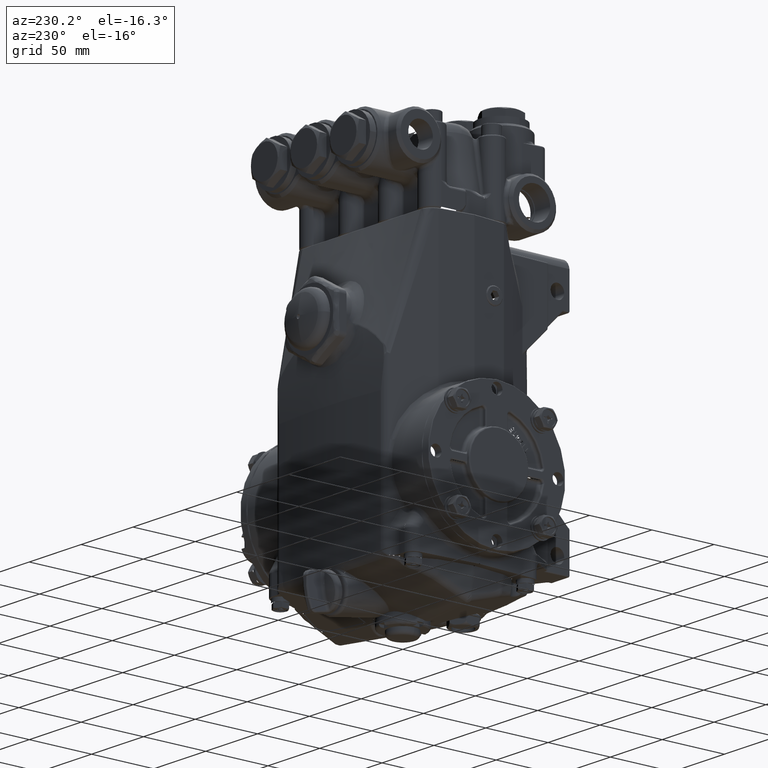
[diagram: clean part render]
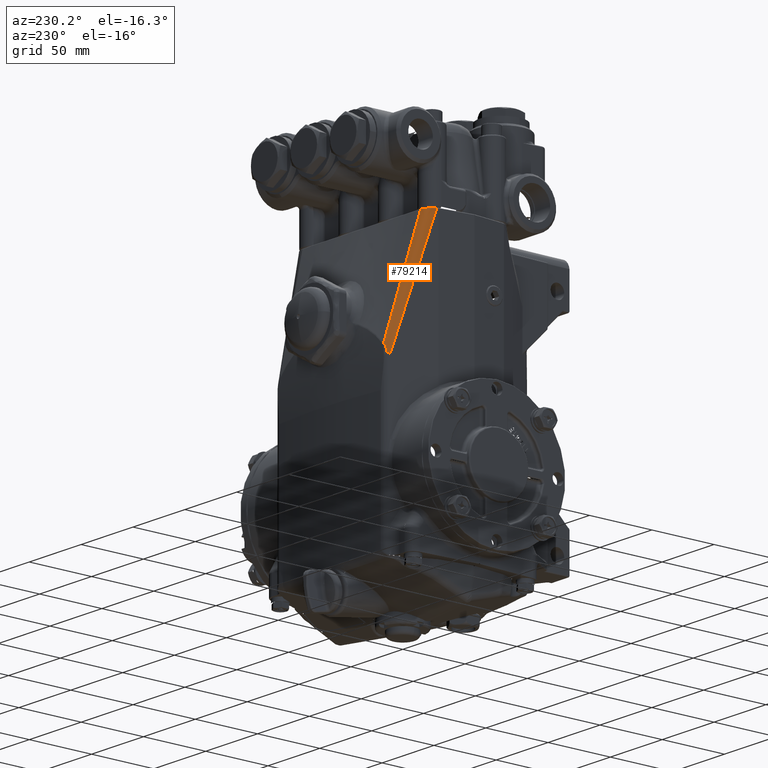
[diagram: same view with one face highlighted and labeled with its STEP entity id]
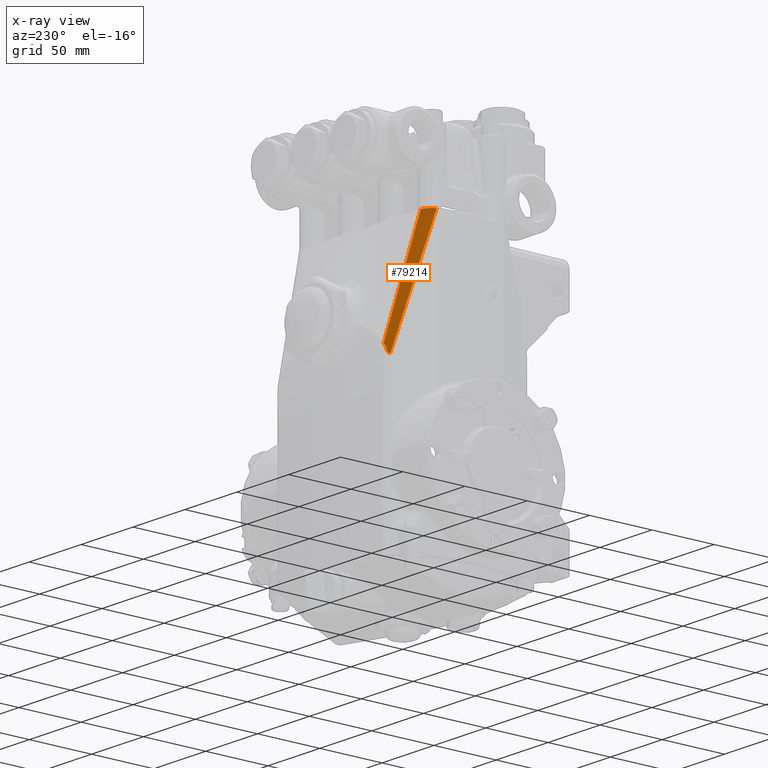
[diagram: x-ray of the same camera — body ghosted, the highlighted face saturated]
A machine part, auxiliary view. The second image highlights one B-rep face of the part: STEP entity #79214.
The next image is the same camera in x-ray: the body ghosted, the highlighted face saturated — about 0% of this face is hidden behind the body in this view.
In plain terms, the highlighted face is a freeform B-spline surface patch.
Its self-contained STEP definition (entity closure, byte-faithful):
#1383 = CARTESIAN_POINT ( 'NONE',  ( -2.171109568603361684, 2.032370397332657674, 3.701658990816812711 ) ) ;
#1747 = EDGE_CURVE ( 'NONE', #45382, #123036, #37415, .T. ) ;
#2639 = CARTESIAN_POINT ( 'NONE',  ( -2.141102833431372421, 1.640556580735810011, 5.285820039345583865 ) ) ;
#2997 = CARTESIAN_POINT ( 'NONE',  ( -2.219596835928836054, 1.371663885670308280, 6.270709733077245218 ) ) ;
#3050 = EDGE_CURVE ( 'NONE', #21131, #3402, #64155, .T. ) ;
#3402 = VERTEX_POINT ( 'NONE', #122441 ) ;
#4214 = CARTESIAN_POINT ( 'NONE',  ( -2.039592545178605221, 2.016255469052942395, 3.889656437366334707 ) ) ;
#4844 = CARTESIAN_POINT ( 'NONE',  ( -2.024869860137846977, 2.067350199555262336, 3.698439582320026009 ) ) ;
#4995 = CARTESIAN_POINT ( 'NONE',  ( -1.980521336883294126, 2.247603629403292835, 3.007863104263380549 ) ) ;
#5217 = CARTESIAN_POINT ( 'NONE',  ( -2.510794119809996783, 1.235584433543192473, 5.944399523494049653 ) ) ;
#5453 = CARTESIAN_POINT ( 'NONE',  ( -2.102087708257041943, 1.788501175651054487, 4.738252424846279176 ) ) ;
#6128 = ORIENTED_EDGE ( 'NONE', *, *, #97894, .T. ) ;
#6240 = CARTESIAN_POINT ( 'NONE',  ( -1.973946976392833230, 2.248599357204132065, 3.013515580454662057 ) ) ;
#7082 = CARTESIAN_POINT ( 'NONE',  ( -2.116276716150627291, 2.160989868001935932, 2.740471938754866610 ) ) ;
#7697 = CARTESIAN_POINT ( 'NONE',  ( -2.135341153782769119, 2.116271095075712427, 2.900905791160292679 ) ) ;
#8324 = CARTESIAN_POINT ( 'NONE',  ( -2.370840981384998880, 1.563867529971241233, 4.815523516165016282 ) ) ;
#8933 = CARTESIAN_POINT ( 'NONE',  ( -2.191904193969489878, 1.983593184563320344, 3.371821664693418708 ) ) ;
#9042 = CARTESIAN_POINT ( 'NONE',  ( -2.449883091026841431, 1.236532062125927478, 6.518773817722738784 ) ) ;
#9551 = CARTESIAN_POINT ( 'NONE',  ( -2.085203970099893667, 2.233876102617321724, 2.923210346434277795 ) ) ;
#10066 = CARTESIAN_POINT ( 'NONE',  ( -2.086370469878879863, 2.212679244017106583, 2.765750601190421598 ) ) ;
#10172 = CARTESIAN_POINT ( 'NONE',  ( -2.087632747411837020, 2.228179006147618768, 2.498972627154562698 ) ) ;
#10795 = CARTESIAN_POINT ( 'NONE',  ( -2.299921550685326554, 1.730220714815038141, 4.869719321444399007 ) ) ;
#12337 = CARTESIAN_POINT ( 'NONE',  ( -2.473764344979107133, 1.322443858621624724, 5.641326221469083357 ) ) ;
#13035 = CARTESIAN_POINT ( 'NONE',  ( -2.242889468066143088, 1.303183471566980778, 6.520931740362723161 ) ) ;
#13644 = CARTESIAN_POINT ( 'NONE',  ( -2.051087863689119661, 1.975864094663217996, 4.040739276079862385 ) ) ;
#13809 = CARTESIAN_POINT ( 'NONE',  ( -2.078564588323855045, 2.221814779649408766, 2.770839816914288711 ) ) ;
#14903 = CARTESIAN_POINT ( 'NONE',  ( -2.095277330354888612, 1.814225585600651502, 4.642765349930773056 ) ) ;
#16626 = ORIENTED_EDGE ( 'NONE', *, *, #3050, .F. ) ;
#16644 = CARTESIAN_POINT ( 'NONE',  ( -2.309823888779523493, 1.298527965123032146, 6.520761428549846528 ) ) ;
#17130 = CARTESIAN_POINT ( 'NONE',  ( -2.192961000559563445, 1.981114270952527345, 3.380523504820887926 ) ) ;
#17247 = CARTESIAN_POINT ( 'NONE',  ( -2.518966107140703237, 1.173763510896865148, 6.517566061681055345 ) ) ;
#17918 = VERTEX_POINT ( 'NONE', #106268 ) ;
#18374 = CARTESIAN_POINT ( 'NONE',  ( -2.207253145336844469, 1.947589695549040378, 3.498047023021521262 ) ) ;
#18391 = CARTESIAN_POINT ( 'NONE',  ( -2.492970227129208016, 1.277393304293375831, 6.621363530560992139 ) ) ;
#18493 = CARTESIAN_POINT ( 'NONE',  ( -2.445216281494452470, 1.239785793748971576, 6.518841455900954429 ) ) ;
#19015 = CARTESIAN_POINT ( 'NONE',  ( -2.560585973950515903, 1.118789453179791948, 6.359217476521575207 ) ) ;
#20246 = CARTESIAN_POINT ( 'NONE',  ( -2.419380578230820422, 1.450009924981134679, 5.200656286739674172 ) ) ;
#20874 = CARTESIAN_POINT ( 'NONE',  ( -2.027881314845334959, 2.059957115943923167, 3.726161280968987910 ) ) ;
#21131 = VERTEX_POINT ( 'NONE', #36153 ) ;
#23085 = CARTESIAN_POINT ( 'NONE',  ( -2.103217578824546408, 1.784213553588428258, 4.754159994647659815 ) ) ;
#23860 = CARTESIAN_POINT ( 'NONE',  ( -2.074511941278426530, 2.223974776708035783, 2.793438250434746806 ) ) ;
#24725 = CARTESIAN_POINT ( 'NONE',  ( -2.447601858726410118, 1.383812271605760813, 5.429797053208527124 ) ) ;
#24957 = CARTESIAN_POINT ( 'NONE',  ( -1.969283401333570938, 2.249277433038161078, 3.017030524756072474 ) ) ;
#25724 = CARTESIAN_POINT ( 'NONE',  ( -1.971604190926488309, 2.248943877874152619, 3.015350224216022390 ) ) ;
#26570 = CARTESIAN_POINT ( 'NONE',  ( -2.388754342707700928, 1.521848795781840291, 4.957948705581671334 ) ) ;
#27164 = CARTESIAN_POINT ( 'NONE',  ( -2.196249590001861041, 1.973400343725545181, 3.407587999926295907 ) ) ;
#27792 = CARTESIAN_POINT ( 'NONE',  ( -2.323235984449598668, 1.675532877210126781, 4.434848354001196924 ) ) ;
#27907 = CARTESIAN_POINT ( 'NONE',  ( -2.452949543125477749, 1.234340743231118642, 6.518732834307325419 ) ) ;
#28407 = CARTESIAN_POINT ( 'NONE',  ( -2.236764012673437829, 1.878367104211970506, 3.739431548797619520 ) ) ;
#28525 = CARTESIAN_POINT ( 'NONE',  ( -2.445206671470471882, 1.239792357576791515, 6.518841608572046198 ) ) ;
#29035 = CARTESIAN_POINT ( 'NONE',  ( -2.273209536691880306, 1.215653160743623395, 6.840860013023599251 ) ) ;
#30274 = CARTESIAN_POINT ( 'NONE',  ( -2.186378929579909869, 1.481371582545127685, 5.869664288253999551 ) ) ;
#31171 = CARTESIAN_POINT ( 'NONE',  ( -2.509661153480672091, 1.238241992344124132, 5.935059730904028719 ) ) ;
#31874 = CARTESIAN_POINT ( 'NONE',  ( -2.103701330979389716, 1.782375980943467386, 4.760976884162536393 ) ) ;
#32487 = CARTESIAN_POINT ( 'NONE',  ( -2.015857065217431909, 2.098060744278819278, 3.583443737743760238 ) ) ;
#32551 =( BOUNDED_SURFACE ( )  B_SPLINE_SURFACE ( 2, 3, ( 
 ( #96247, #84983, #19015, #87443, #66156, #20246, #8324, #75547, #76180, #39030, #123214, #10172, #37209, #113794 ),
 ( #104434, #18391, #58565, #56707, #96870, #115041, #10795, #49117, #1383, #114422, #9551, #66777, #47872, #86219 ),
 ( #29035, #67379, #105650, #68615, #30274, #2639, #69841, #90530, #20874, #80488, #78032, #39649, #59792, #70467 ) ),
 .UNSPECIFIED., .F., .F., .F. ) 
 B_SPLINE_SURFACE_WITH_KNOTS ( ( 3, 3 ),
 ( 4, 2, 2, 2, 2, 2, 4 ),
 ( 0.000000000000000000, 1.000000000000000000 ),
 ( -0.05579888569863813291, -0.04039671253618186408, -0.02499453937372558832, 0.005809806951186959750, 0.03661415327609950782, 0.05201632643855577665, 0.06741849960101205241 ),
 .UNSPECIFIED. ) 
 GEOMETRIC_REPRESENTATION_ITEM ( )  RATIONAL_B_SPLINE_SURFACE ( (
 ( 1.000000000000000000, 1.000000000000000000, 1.000000000000000000, 1.000000000000000000, 1.000000000000000000, 1.000000000000000000, 1.000000000000000000, 1.000000000000000000, 1.000000000000000000, 1.000000000000000000, 1.000000000000000000, 1.000000000000000000, 1.000000000000000000, 1.000000000000000000),
 ( 0.8249655899556018745, 0.8281912456652233967, 0.8315314859655612567, 0.8384645648586018796, 0.8420556766761636558, 0.8532132272860135647, 0.8611688039213737378, 0.8781266334368532656, 0.8871406962535873797, 0.9012423333731803821, 0.9060298368779703404, 0.9157270827393148016, 0.9206428270897365485, 0.9255808091159235529),
 ( 1.000000000000000000, 1.000000000000000000, 1.000000000000000000, 1.000000000000000000, 1.000000000000000000, 1.000000000000000000, 1.000000000000000000, 1.000000000000000000, 1.000000000000000000, 1.000000000000000000, 1.000000000000000000, 1.000000000000000000, 1.000000000000000000, 1.000000000000000000) ) ) 
 REPRESENTATION_ITEM ( '' )  SURFACE ( )  );
#33484 = CARTESIAN_POINT ( 'NONE',  ( -2.454128586136022694, 1.368502759381297507, 5.482476687669967319 ) ) ;
#33990 = B_SPLINE_CURVE_WITH_KNOTS ( 'NONE', 3,
 ( #79152, #10066, #116180, #41404, #48373, #117404, #108024, #60313 ),
 .UNSPECIFIED., .F., .F.,
 ( 4, 2, 2, 4 ),
 ( 0.006197228679374548743, 0.007185694159532395389, 0.007679926899611316110, 0.008174159639690236831 ),
 .UNSPECIFIED. ) ;
#35116 = CARTESIAN_POINT ( 'NONE',  ( -1.990657562505185663, 2.245983919444319188, 2.997701605078443521 ) ) ;
#35158 = ORIENTED_EDGE ( 'NONE', *, *, #71305, .T. ) ;
#35342 = CARTESIAN_POINT ( 'NONE',  ( -2.388247857486286208, 1.523036840141918979, 4.953903101054637936 ) ) ;
#35975 = CARTESIAN_POINT ( 'NONE',  ( -2.128867290965309245, 2.131456604707603564, 2.846450088255815469 ) ) ;
#36153 = CARTESIAN_POINT ( 'NONE',  ( -2.578741269179713580, 1.076203223235405515, 6.515748031496061188 ) ) ;
#36588 = CARTESIAN_POINT ( 'NONE',  ( -2.335228189731081372, 1.647403188036234090, 4.530557156123640183 ) ) ;
#36704 = CARTESIAN_POINT ( 'NONE',  ( -2.568667506091713459, 1.099827564856416862, 6.516020532537902810 ) ) ;
#37209 = CARTESIAN_POINT ( 'NONE',  ( -2.064620467235923407, 2.282158092840731012, 2.305505038962808229 ) ) ;
#37300 = CARTESIAN_POINT ( 'NONE',  ( -2.578741269179713580, 1.076203223235405515, 6.515748031496061188 ) ) ;
#37415 = B_SPLINE_CURVE_WITH_KNOTS ( 'NONE', 3,
 ( #24957, #41893, #89061, #90913, #32487, #4844, #62020, #71434, #52581, #100959, #43126, #4214, #13644, #79612, #117871, #14903, #81474, #5453, #23085, #31874, #53208, #42512, #80247, #119704, #63270, #2997, #13035 ),
 .UNSPECIFIED., .F., .F.,
 ( 4, 2, 2, 1, 1, 1, 2, 2, 1, 1, 1, 1, 1, 1, 2, 2, 2, 4 ),
 ( 0.005641731690138021039, 0.1293381763867609835, 0.1911863987350724825, 0.2221105099092279822, 0.2375725654963057876, 0.2453035932898448845, 0.2491691071866144469, 0.2530346210833839815, 0.3767310657800118645, 0.4385792881283260836, 0.4695033993024831931, 0.4849654548895614981, 0.4926964826831005118, 0.4965619965798699353, 0.4984947535282545084, 0.5004275104766390259, 0.7478203998698899069, 0.9952132892631408989 ),
 .UNSPECIFIED. ) ;
#37793 = CARTESIAN_POINT ( 'NONE',  ( -2.190313670553976078, 1.987324018738688469, 3.358720221647115700 ) ) ;
#39030 = CARTESIAN_POINT ( 'NONE',  ( -2.156531210261403597, 2.066566333663618416, 3.079474569265922224 ) ) ;
#39649 = CARTESIAN_POINT ( 'NONE',  ( -1.929606984645301226, 2.371916305126036573, 2.557822401772311682 ) ) ;
#41404 = CARTESIAN_POINT ( 'NONE',  ( -2.102880983442067198, 2.187768918881022540, 2.753086199699649406 ) ) ;
#41893 = CARTESIAN_POINT ( 'NONE',  ( -1.980576549137500475, 2.213915170793006038, 3.149390972694495971 ) ) ;
#42512 = CARTESIAN_POINT ( 'NONE',  ( -2.104176596812008082, 1.780569754446585717, 4.767677203724272061 ) ) ;
#42665 = CARTESIAN_POINT ( 'NONE',  ( -2.001753787168236709, 2.244087834222828981, 2.984545616857926298 ) ) ;
#43126 = CARTESIAN_POINT ( 'NONE',  ( -2.039255149049658655, 2.017440514121979334, 3.885223523361690301 ) ) ;
#43496 = CARTESIAN_POINT ( 'NONE',  ( -2.453904207224300471, 1.369029077009773276, 5.480664730401618279 ) ) ;
#43727 = ORIENTED_EDGE ( 'NONE', *, *, #107725, .T. ) ;
#44775 = CARTESIAN_POINT ( 'NONE',  ( -2.369657215020743557, 1.566644248606327672, 4.805421451750245154 ) ) ;
#44890 = CARTESIAN_POINT ( 'NONE',  ( -2.455098737719988211, 1.232773253164978655, 6.518705568978721665 ) ) ;
#45162 = CARTESIAN_POINT ( 'NONE',  ( -1.969283401333570938, 2.249277433038161078, 3.017030524756072474 ) ) ;
#45382 = VERTEX_POINT ( 'NONE', #110482 ) ;
#47231 = CARTESIAN_POINT ( 'NONE',  ( -2.388390843231512406, 1.522701443567635593, 4.955045197318138861 ) ) ;
#47345 = CARTESIAN_POINT ( 'NONE',  ( -2.378857210472768990, 1.277797303543370289, 6.519968401408404723 ) ) ;
#47872 = CARTESIAN_POINT ( 'NONE',  ( -2.020750001317166422, 2.385063483496169923, 2.339468058897046454 ) ) ;
#48373 = CARTESIAN_POINT ( 'NONE',  ( -2.105833752788412117, 2.182577919191674543, 2.750555192226245893 ) ) ;
#49117 = CARTESIAN_POINT ( 'NONE',  ( -2.214051862333661802, 1.931642187036901603, 4.091001638619363945 ) ) ;
#50662 = CARTESIAN_POINT ( 'NONE',  ( -2.459502388699162267, 1.355897621941197562, 5.525892219571484354 ) ) ;
#52581 = CARTESIAN_POINT ( 'NONE',  ( -2.037354366251948434, 2.024106466280659156, 3.860286317184686844 ) ) ;
#53076 = ORIENTED_EDGE ( 'NONE', *, *, #1747, .F. ) ;
#53208 = CARTESIAN_POINT ( 'NONE',  ( -2.104023726110235692, 1.781150927990455823, 4.765521334715924873 ) ) ;
#54222 = CARTESIAN_POINT ( 'NONE',  ( -2.128134919880238396, 2.133174501499679909, 2.840288846492204033 ) ) ;
#54949 = CARTESIAN_POINT ( 'NONE',  ( -2.448389174663573975, 1.237587732515563532, 6.518794331101427808 ) ) ;
#55442 = CARTESIAN_POINT ( 'NONE',  ( -2.324004755099399855, 1.673729599254377254, 4.440983501421465363 ) ) ;
#56688 = CARTESIAN_POINT ( 'NONE',  ( -2.129160240502529167, 2.130769443403055519, 2.848914584109101256 ) ) ;
#56707 = CARTESIAN_POINT ( 'NONE',  ( -2.428652043501072111, 1.428262178878300093, 6.037647731654220529 ) ) ;
#58565 = CARTESIAN_POINT ( 'NONE',  ( -2.471535058323093281, 1.327673016952173324, 6.426822189469408642 ) ) ;
#59792 = CARTESIAN_POINT ( 'NONE',  ( -1.912934457154228829, 2.423712075035871383, 2.363097743479620760 ) ) ;
#60313 = CARTESIAN_POINT ( 'NONE',  ( -2.116276716150627291, 2.160989868001935932, 2.740471938754866610 ) ) ;
#62020 = CARTESIAN_POINT ( 'NONE',  ( -2.029393201424144255, 2.051820080033732729, 3.756581077384122391 ) ) ;
#63034 = CARTESIAN_POINT ( 'NONE',  ( -2.504224283270166218, 1.250995065320325672, 5.890277865750602082 ) ) ;
#63270 = CARTESIAN_POINT ( 'NONE',  ( -2.196801966743004542, 1.445655353129325693, 6.000532626565719951 ) ) ;
#64155 = B_SPLINE_CURVE_WITH_KNOTS ( 'NONE', 3,
 ( #78316, #111339, #79542, #78934, #87731, #5217, #31171, #63034, #98399, #12337, #50662, #88984, #33484, #71812, #110103, #43496, #81863, #72450, #110736, #24725, #101338, #75530, #95001, #66136, #121957, #26570, #47231, #35342, #122578, #103776, #44775, #64900, #36588, #103187, #55442, #27792, #84349, #84966, #83121, #76162, #113186, #74919, #28407, #18374, #27164, #66759, #17130, #8933, #37793, #93760, #105030, #121346, #7697, #114404, #123196, #56688, #35975, #54222, #65503, #74304, #92544, #7082 ),
 .UNSPECIFIED., .F., .F.,
 ( 4, 1, 1, 2, 2, 1, 1, 1, 1, 2, 2, 1, 1, 1, 1, 1, 1, 1, 1, 1, 2, 2, 1, 1, 1, 1, 1, 1, 2, 2, 1, 1, 1, 1, 1, 2, 2, 1, 1, 1, 1, 1, 2, 2, 1, 1, 1, 4 ),
 ( 0.004384135288062663074, 0.1164778576989700248, 0.1304895730003339527, 0.1374954306510154933, 0.1445012883016970617, 0.1725247189044225027, 0.2285715801098741062, 0.2425832954112367712, 0.2495891530619177845, 0.2498080861135011654, 0.2500270191650844631, 0.2504648852682502813, 0.2513406174745818067, 0.2530920818872448574, 0.2565950107125701263, 0.2846184413151690573, 0.3406653025203668639, 0.3686887331229657949, 0.3721916619482903976, 0.3739431263609523381, 0.3748188585672830309, 0.3756945907736137236, 0.3827004484242614857, 0.3967121637255564548, 0.4527590249307363313, 0.4807824555333265470, 0.4947941708346216827, 0.4982970996599455082, 0.4991728318662764230, 0.5000485640726073377, 0.5018000284852692783, 0.5088058861359165963, 0.5648527473410953625, 0.6769464697514522289, 0.7329933309566308841, 0.7470050462579255202, 0.7505079750832490681, 0.7540109039085726161, 0.7610167615592194901, 0.7890401921618066527, 0.8450870533669809781, 0.8731104839695683628, 0.8748619483822301923, 0.8757376805885611626, 0.8766134127948920218, 0.8801163416202162360, 0.8871221992708644422, 0.9011339145721609656 ),
 .UNSPECIFIED. ) ;
#64385 = CARTESIAN_POINT ( 'NONE',  ( -2.413335886198790359, 1.261641137614142094, 6.519338661464769480 ) ) ;
#64900 = CARTESIAN_POINT ( 'NONE',  ( -2.352445062671071341, 1.607018181860922379, 4.667987381715759554 ) ) ;
#65013 = CARTESIAN_POINT ( 'NONE',  ( -2.461842245117182415, 1.227730308130063896, 6.518620642111073060 ) ) ;
#65503 = CARTESIAN_POINT ( 'NONE',  ( -2.126230790912788660, 2.137640949058251305, 2.824269590211677006 ) ) ;
#66136 = CARTESIAN_POINT ( 'NONE',  ( -2.390565578740811326, 1.517600243873659105, 4.972417417491544533 ) ) ;
#66156 = CARTESIAN_POINT ( 'NONE',  ( -2.490782990709670131, 1.282523826957326474, 5.779363762767575352 ) ) ;
#66248 = CARTESIAN_POINT ( 'NONE',  ( -2.445321431780115518, 1.239713587032230224, 6.518839829878381842 ) ) ;
#66759 = CARTESIAN_POINT ( 'NONE',  ( -2.193516040080917051, 1.979812334498938231, 3.385092303108808487 ) ) ;
#66777 = CARTESIAN_POINT ( 'NONE',  ( -2.042237225648480869, 2.334661666142283210, 2.534052278334617547 ) ) ;
#66871 = CARTESIAN_POINT ( 'NONE',  ( -2.494202314255044239, 1.200213502487107675, 6.518138096981285656 ) ) ;
#67379 = CARTESIAN_POINT ( 'NONE',  ( -2.254681818407403338, 1.268730751780510202, 6.646774213595586289 ) ) ;
#67598 = B_SPLINE_CURVE_WITH_KNOTS ( 'NONE', 3,
 ( #37300, #36704, #114514, #113294, #17247, #66871, #75639, #113891, #65013, #44890, #27907, #9042, #54949, #83236, #103298, #95110, #66248, #28525, #18493, #64385, #47345, #16644, #85682, #83838 ),
 .UNSPECIFIED., .F., .F.,
 ( 4, 2, 2, 2, 2, 2, 1, 1, 1, 1, 2, 2, 2, 4 ),
 ( 0.000000000000000000, 0.1250000000001746381, 0.2500000000003492762, 0.3750000000005239142, 0.4375000000006127321, 0.4687500000006562528, 0.4843750000006780687, 0.4921875000006889489, 0.4960937500006944445, 0.4980468750006966649, 0.4990234375006961098, 0.5000000000006955547, 0.7500000000003478329, 1.000000000000000000 ),
 .UNSPECIFIED. ) ;
#68615 = CARTESIAN_POINT ( 'NONE',  ( -2.202150233065117924, 1.428197325380847538, 6.064137633037693931 ) ) ;
#69841 = CARTESIAN_POINT ( 'NONE',  ( -2.113561063574255883, 1.746169220545683132, 4.896017564383725151 ) ) ;
#70467 = CARTESIAN_POINT ( 'NONE',  ( -1.896433767760507871, 2.475263124701502004, 2.168272852402046258 ) ) ;
#71305 = EDGE_CURVE ( 'NONE', #45382, #17918, #118679, .T. ) ;
#71434 = CARTESIAN_POINT ( 'NONE',  ( -2.034696585288667148, 2.033395393086714797, 3.825531984624838344 ) ) ;
#71812 = CARTESIAN_POINT ( 'NONE',  ( -2.454045509642763356, 1.368697628955176437, 5.481805796769130268 ) ) ;
#72228 = CARTESIAN_POINT ( 'NONE',  ( -2.035675016195813480, 2.236992360180967143, 2.924478765675068370 ) ) ;
#72450 = CARTESIAN_POINT ( 'NONE',  ( -2.453281713218242732, 1.370489239047693930, 5.475638330006604271 ) ) ;
#72846 = CARTESIAN_POINT ( 'NONE',  ( -1.978378808574838832, 2.247933082793946991, 3.009791413277802974 ) ) ;
#74085 = CARTESIAN_POINT ( 'NONE',  ( -2.069731911945700720, 2.226127944432313210, 2.815925666837383545 ) ) ;
#74304 = CARTESIAN_POINT ( 'NONE',  ( -2.122129775396042639, 2.147260555217052502, 2.789766433521803091 ) ) ;
#74919 = CARTESIAN_POINT ( 'NONE',  ( -2.275748337170824254, 1.786922961535482024, 4.054807651597041485 ) ) ;
#75530 = CARTESIAN_POINT ( 'NONE',  ( -2.414641187365241137, 1.461126945478474326, 5.164915279586455910 ) ) ;
#75547 = CARTESIAN_POINT ( 'NONE',  ( -2.274451880622001987, 1.789964013526333275, 4.044763416982778637 ) ) ;
#75639 = CARTESIAN_POINT ( 'NONE',  ( -2.482404142612225861, 1.210929223838076441, 6.518339644756721007 ) ) ;
#76162 = CARTESIAN_POINT ( 'NONE',  ( -2.320612957147009769, 1.681685619010703236, 4.413914260665834810 ) ) ;
#76180 = CARTESIAN_POINT ( 'NONE',  ( -2.226615536731508804, 1.902172023085083374, 3.659126657212345091 ) ) ;
#76798 = FACE_OUTER_BOUND ( 'NONE', #82220, .T. ) ;
#78032 = CARTESIAN_POINT ( 'NONE',  ( -1.963331270966063746, 2.267981324724265946, 2.947115148274536356 ) ) ;
#78316 = CARTESIAN_POINT ( 'NONE',  ( -2.578741269179713580, 1.076203223235405515, 6.515748031496061188 ) ) ;
#78934 = CARTESIAN_POINT ( 'NONE',  ( -2.516435499551322508, 1.222351649838227194, 5.990987664820365488 ) ) ;
#79152 = CARTESIAN_POINT ( 'NONE',  ( -2.078564588323855045, 2.221814779649408766, 2.770839816914288711 ) ) ;
#79214 = ADVANCED_FACE ( 'NONE', ( #76798 ), #32551, .T. ) ;
#79542 = CARTESIAN_POINT ( 'NONE',  ( -2.538027839267278374, 1.171703266951987343, 6.169933545763511162 ) ) ;
#79612 = CARTESIAN_POINT ( 'NONE',  ( -2.067507495042413268, 1.917100978669542988, 4.260115974954152840 ) ) ;
#80247 = CARTESIAN_POINT ( 'NONE',  ( -2.128129798516092741, 1.689511524556636335, 5.105438811511312736 ) ) ;
#80488 = CARTESIAN_POINT ( 'NONE',  ( -1.980158244783918331, 2.215925803143892203, 3.141747226529187920 ) ) ;
#81013 = CARTESIAN_POINT ( 'NONE',  ( -1.986756367771373322, 2.246624480287164882, 3.001904483647719335 ) ) ;
#81474 = CARTESIAN_POINT ( 'NONE',  ( -2.099823510332839760, 1.797076230404204722, 4.706431320396312401 ) ) ;
#81863 = CARTESIAN_POINT ( 'NONE',  ( -2.453717777139348577, 1.369466379425738012, 5.479159291132056353 ) ) ;
#82220 = EDGE_LOOP ( 'NONE', ( #16626, #6128, #53076, #35158, #43727 ) ) ;
#83121 = CARTESIAN_POINT ( 'NONE',  ( -2.322284246763545390, 1.677765334431744915, 4.427253081994904527 ) ) ;
#83236 = CARTESIAN_POINT ( 'NONE',  ( -2.446716860549502659, 1.238751505777597073, 6.518818660780111962 ) ) ;
#83838 = CARTESIAN_POINT ( 'NONE',  ( -2.242889468066143088, 1.303183471566980778, 6.520931740362723161 ) ) ;
#84349 = CARTESIAN_POINT ( 'NONE',  ( -2.322928475311592411, 1.676254190452120874, 4.432394295748198765 ) ) ;
#84966 = CARTESIAN_POINT ( 'NONE',  ( -2.322785958753120550, 1.676588486471730866, 4.431256960749057505 ) ) ;
#84983 = CARTESIAN_POINT ( 'NONE',  ( -2.583105798428203315, 1.065965502293462208, 6.553038627379630832 ) ) ;
#85682 = CARTESIAN_POINT ( 'NONE',  ( -2.275330066294140696, 1.303153593715473013, 6.520931048461626744 ) ) ;
#86219 = CARTESIAN_POINT ( 'NONE',  ( -1.999260438597442180, 2.435470786114593000, 2.144875713876672751 ) ) ;
#87443 = CARTESIAN_POINT ( 'NONE',  ( -2.514342318431109558, 1.227261550303916593, 5.972439309888373238 ) ) ;
#87731 = CARTESIAN_POINT ( 'NONE',  ( -2.513047790653295088, 1.230298078045243937, 5.962999282614607210 ) ) ;
#88984 = CARTESIAN_POINT ( 'NONE',  ( -2.455499089015298786, 1.365288019548124510, 5.493544481670835644 ) ) ;
#89061 = CARTESIAN_POINT ( 'NONE',  ( -1.992170046785848747, 2.176693751127848575, 3.288863769030317741 ) ) ;
#90437 = CARTESIAN_POINT ( 'NONE',  ( -2.026352038655822252, 2.239235650669866295, 2.945270539709730517 ) ) ;
#90530 = CARTESIAN_POINT ( 'NONE',  ( -2.056971949321643844, 1.955863575897020867, 4.116183297647427075 ) ) ;
#90913 = CARTESIAN_POINT ( 'NONE',  ( -2.009893760231598936, 2.118068184554910971, 3.508496124013047446 ) ) ;
#91675 = CARTESIAN_POINT ( 'NONE',  ( -2.058319616543888397, 2.230433463084998458, 2.860153329479801165 ) ) ;
#92310 = CARTESIAN_POINT ( 'NONE',  ( -2.051699096379327347, 2.232587678940594511, 2.881935155951276251 ) ) ;
#92544 = CARTESIAN_POINT ( 'NONE',  ( -2.118614936958072459, 2.155505186661883066, 2.760192053794626066 ) ) ;
#93760 = CARTESIAN_POINT ( 'NONE',  ( -2.184423302529330257, 2.001140845399335344, 3.310146085737890598 ) ) ;
#95001 = CARTESIAN_POINT ( 'NONE',  ( -2.397395316782696906, 1.501579970392016961, 5.026985520467778912 ) ) ;
#95110 = CARTESIAN_POINT ( 'NONE',  ( -2.445493894201158369, 1.239595136904907857, 6.518837165092524089 ) ) ;
#96247 = CARTESIAN_POINT ( 'NONE',  ( -2.605666349592137276, 1.013046020268494329, 6.746829312595115979 ) ) ;
#96870 = CARTESIAN_POINT ( 'NONE',  ( -2.407204766175933486, 1.478570294039977862, 5.843025977975107033 ) ) ;
#97894 = EDGE_CURVE ( 'NONE', #21131, #123036, #67598, .T. ) ;
#98399 = CARTESIAN_POINT ( 'NONE',  ( -2.490789639494992436, 1.282508231138218324, 5.779962693120546113 ) ) ;
#100959 = CARTESIAN_POINT ( 'NONE',  ( -2.038494671652133494, 2.020109083724238364, 3.875240692620719241 ) ) ;
#101116 = CARTESIAN_POINT ( 'NONE',  ( -2.008387420742251628, 2.242849625259780488, 2.974987825606482339 ) ) ;
#101338 = CARTESIAN_POINT ( 'NONE',  ( -2.434233984221323865, 1.415168819122862187, 5.322110024070650702 ) ) ;
#103187 = CARTESIAN_POINT ( 'NONE',  ( -2.327233545729049613, 1.666155939974224287, 4.466751158129988575 ) ) ;
#103298 = CARTESIAN_POINT ( 'NONE',  ( -2.445898557131082729, 1.239316689176584996, 6.518830969356274707 ) ) ;
#103776 = CARTESIAN_POINT ( 'NONE',  ( -2.383177958147066455, 1.534929122604378415, 4.913407881114601139 ) ) ;
#103868 = CARTESIAN_POINT ( 'NONE',  ( -2.242889468066143088, 1.303183471566980778, 6.520931740362723161 ) ) ;
#104434 = CARTESIAN_POINT ( 'NONE',  ( -2.514403341186182583, 1.227118411398908870, 6.815911806478998969 ) ) ;
#105030 = CARTESIAN_POINT ( 'NONE',  ( -2.170040108502838905, 2.034878991786615021, 3.191115310995193521 ) ) ;
#105650 = CARTESIAN_POINT ( 'NONE',  ( -2.236084617907955874, 1.321859438874137593, 6.452719553155735532 ) ) ;
#106268 = CARTESIAN_POINT ( 'NONE',  ( -2.078564588323855045, 2.221814779649408766, 2.770839816914288711 ) ) ;
#107725 = EDGE_CURVE ( 'NONE', #17918, #3402, #33990, .T. ) ;
#108024 = CARTESIAN_POINT ( 'NONE',  ( -2.113930270725144833, 2.166493841535388931, 2.742919209524317559 ) ) ;
#110103 = CARTESIAN_POINT ( 'NONE',  ( -2.453997346524665613, 1.368810603467365272, 5.481416859358078320 ) ) ;
#110482 = CARTESIAN_POINT ( 'NONE',  ( -1.969283401333570938, 2.249277433038161078, 3.017030524756072474 ) ) ;
#110736 = CARTESIAN_POINT ( 'NONE',  ( -2.452405343817823713, 1.372544907563758132, 5.468563329769785319 ) ) ;
#111339 = CARTESIAN_POINT ( 'NONE',  ( -2.559261624423091241, 1.121895932737943191, 6.349045523137163194 ) ) ;
#113186 = CARTESIAN_POINT ( 'NONE',  ( -2.308285510220497994, 1.710601672581422372, 4.315482306667192347 ) ) ;
#113294 = CARTESIAN_POINT ( 'NONE',  ( -2.531926916347460477, 1.158009478584702601, 6.517190874116422172 ) ) ;
#113794 = CARTESIAN_POINT ( 'NONE',  ( -2.041550150992671675, 2.336273312671742985, 2.112079036836429058 ) ) ;
#113891 = CARTESIAN_POINT ( 'NONE',  ( -2.466733721763861187, 1.223914566290022821, 6.518559753137947332 ) ) ;
#114404 = CARTESIAN_POINT ( 'NONE',  ( -2.129788348077011229, 2.129296113817443103, 2.854198570312088901 ) ) ;
#114422 = CARTESIAN_POINT ( 'NONE',  ( -2.106682754440166061, 2.183494082552249527, 3.117795051690434693 ) ) ;
#114514 = CARTESIAN_POINT ( 'NONE',  ( -2.556788508688575323, 1.121049515130833951, 6.516418948900233765 ) ) ;
#115041 = CARTESIAN_POINT ( 'NONE',  ( -2.342847266420385210, 1.629531390957924097, 5.259094304102589490 ) ) ;
#116180 = CARTESIAN_POINT ( 'NONE',  ( -2.093446728250653699, 2.202984832081895217, 2.760677852182992442 ) ) ;
#117404 = CARTESIAN_POINT ( 'NONE',  ( -2.111350010579472247, 2.171960448266391897, 2.745480503865430855 ) ) ;
#117871 = CARTESIAN_POINT ( 'NONE',  ( -2.086114179300275762, 1.848521304219685302, 4.515339146392889802 ) ) ;
#118679 = B_SPLINE_CURVE_WITH_KNOTS ( 'NONE', 3,
 ( #45162, #25724, #6240, #72846, #4995, #81013, #35116, #42665, #101116, #90437, #72228, #92310, #91675, #74085, #23860, #13809 ),
 .UNSPECIFIED., .F., .F.,
 ( 4, 2, 2, 2, 2, 2, 2, 4 ),
 ( -6.000000001276593259E-08, 0.0002197440913770516116, 0.0004395481827541159858, 0.0008791563655082139427, 0.001758372731016396304, 0.003516805462032758858, 0.005275238193049121629, 0.007033670924065483533 ),
 .UNSPECIFIED. ) ;
#119704 = CARTESIAN_POINT ( 'NONE',  ( -2.151067203562875729, 1.604579134061053347, 5.417896058936713111 ) ) ;
#121346 = CARTESIAN_POINT ( 'NONE',  ( -2.150977452071752616, 2.079593586612899170, 3.032153085021350503 ) ) ;
#121957 = CARTESIAN_POINT ( 'NONE',  ( -2.389298985985097268, 1.520571245427739582, 4.962299242550407996 ) ) ;
#122441 = CARTESIAN_POINT ( 'NONE',  ( -2.116276716150627291, 2.160989868001935932, 2.740471938754866610 ) ) ;
#122578 = CARTESIAN_POINT ( 'NONE',  ( -2.386865180656386975, 1.526280135977846397, 4.942858931438967041 ) ) ;
#123036 = VERTEX_POINT ( 'NONE', #103868 ) ;
#123196 = CARTESIAN_POINT ( 'NONE',  ( -2.129297730441084724, 2.130446938146905111, 2.850071259586242078 ) ) ;
#123214 = CARTESIAN_POINT ( 'NONE',  ( -2.133543402384709076, 2.120488016555335697, 2.885989440036138554 ) ) ;